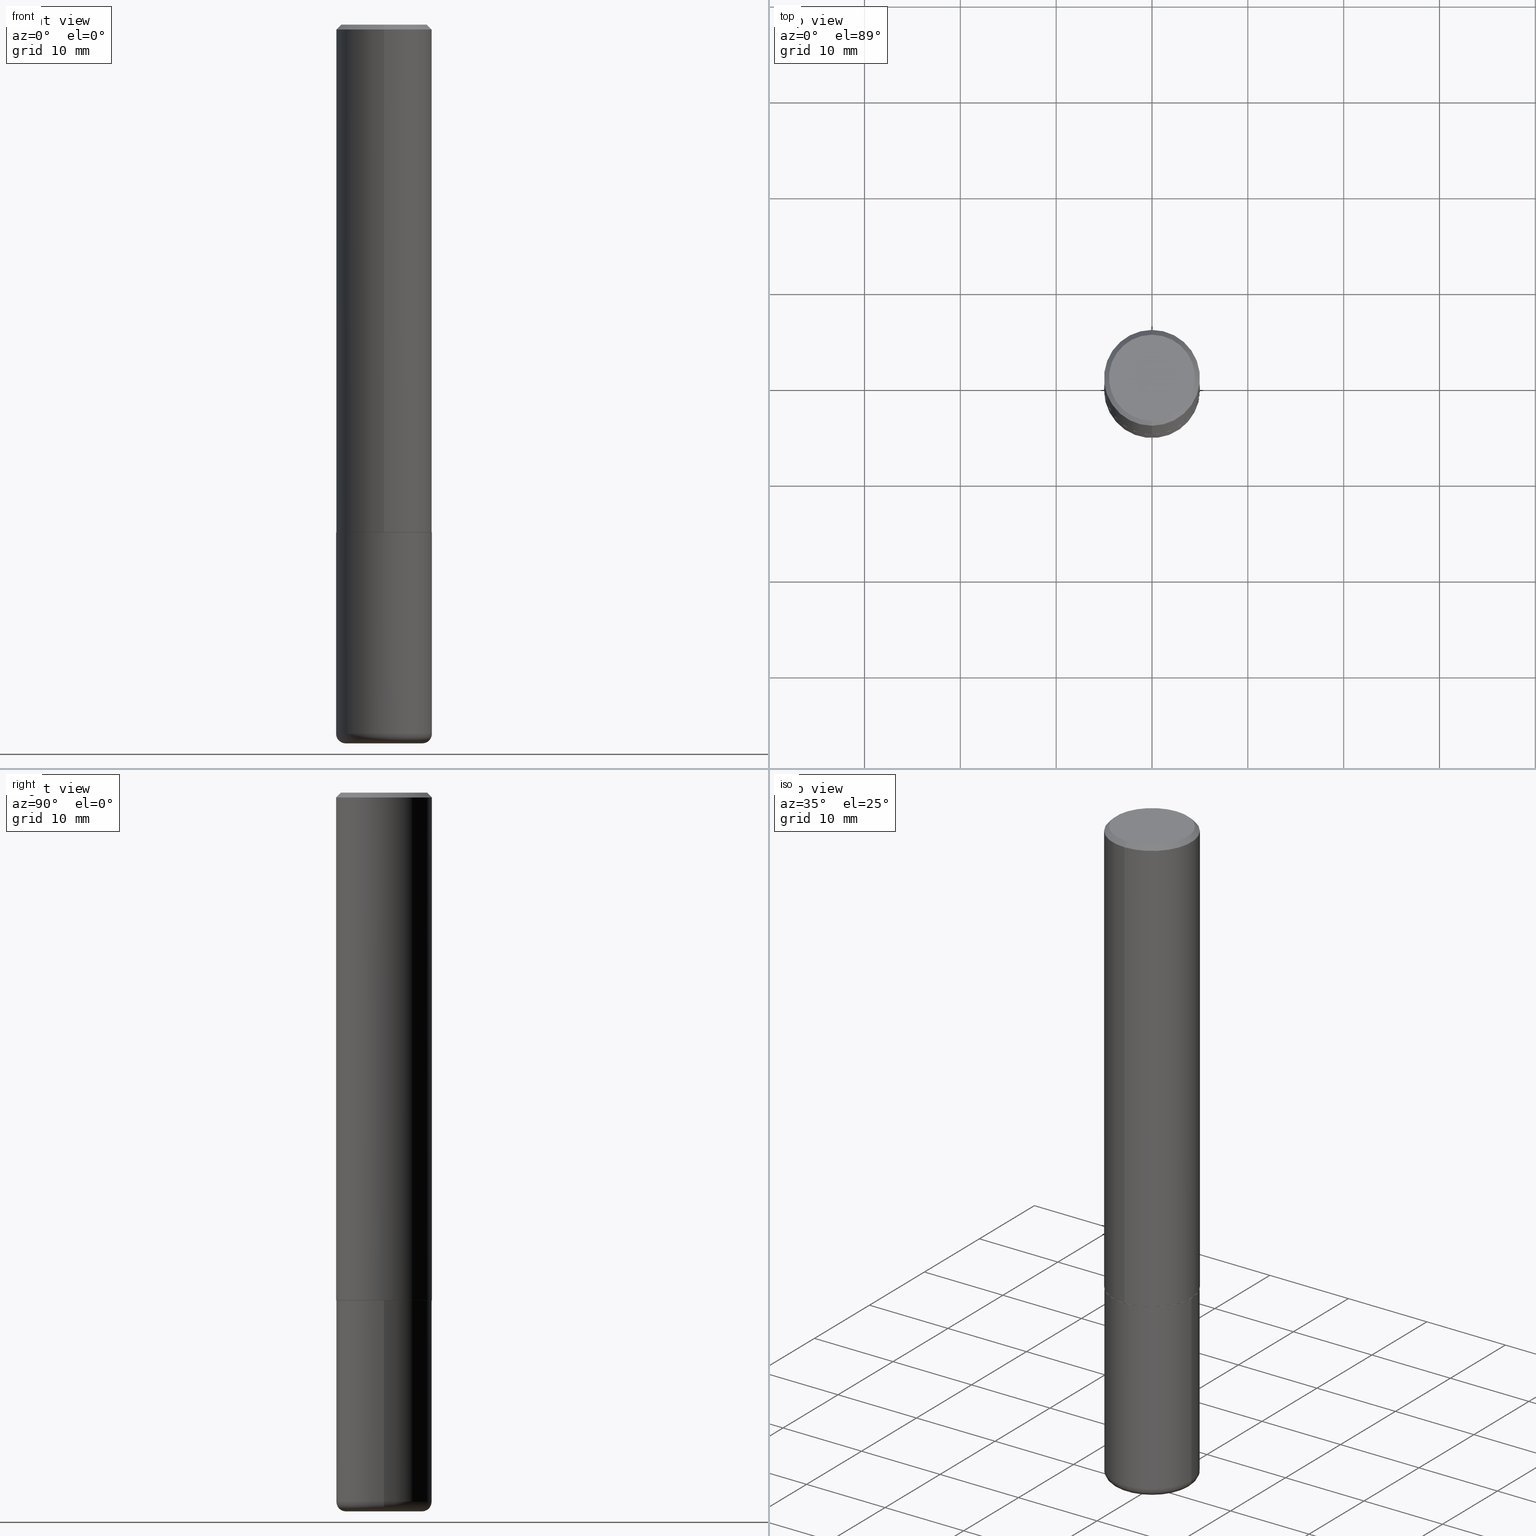
[diagram: canonical four-view strip — front | top / right | iso, engineering-drawing reading convention]
A machine part, canonical four-view strip (front | top / right | iso — engineering-drawing reading convention). The complete STEP part file that produces these views, byte-faithful:
ISO-10303-21;
HEADER;
FILE_DESCRIPTION (( 'STEP AP203' ),
    '1' );
FILE_NAME ('40023.STEP',
    '2024-03-03T21:01:40',
    ( '' ),
    ( '' ),
    'SwSTEP 2.0',
    'SolidWorks 2023',
    '' );
FILE_SCHEMA (( 'CONFIG_CONTROL_DESIGN' ));
ENDSEC;

DATA;
#1 = ORIENTED_EDGE ( 'NONE', *, *, #225, .F. ) ;
#2 = APPROVAL_STATUS ( 'not_yet_approved' ) ;
#3 = ADVANCED_BREP_SHAPE_REPRESENTATION ( '40023', ( #28, #30, #126 ), #333 ) ;
#4 = APPROVAL_ROLE ( '' ) ;
#5 = PERSON_AND_ORGANIZATION ( #82, #44 ) ;
#6 = AXIS2_PLACEMENT_3D ( 'NONE', #160, #154, #289 ) ;
#7 = ADVANCED_FACE ( 'NONE', ( #176 ), #10, .F. ) ;
#8 = LINE ( 'NONE', #175, #362 ) ;
#9 = PRODUCT_DEFINITION_SHAPE ( 'NONE', 'NONE',  #213 ) ;
#10 = PLANE ( 'NONE',  #97 ) ;
#11 = CLOSED_SHELL ( 'NONE', ( #305, #256, #67, #294, #259, #245, #147, #7 ) ) ;
#12 = AXIS2_PLACEMENT_3D ( 'NONE', #104, #71, #208 ) ;
#13 = LINE ( 'NONE', #302, #199 ) ;
#14 = DIRECTION ( 'NONE',  ( -2.445468806185136597E-29, 3.491481338843145583E-15, 1.000000000000000000 ) ) ;
#15 = DIRECTION ( 'NONE',  ( -2.445468806185136877E-29, 3.491481338843145188E-15, 1.000000000000000000 ) ) ;
#16 = DIRECTION ( 'NONE',  ( -2.444582098244614651E-29, 3.492751155082254917E-15, 1.000000000000000000 ) ) ;
#17 = AXIS2_PLACEMENT_3D ( 'NONE', #363, #266, #139 ) ;
#18 = EDGE_LOOP ( 'NONE', ( #306, #372 ) ) ;
#19 = ORIENTED_EDGE ( 'NONE', *, *, #417, .F. ) ;
#20 = DIRECTION ( 'NONE',  ( 1.000000000000000000, -6.982962677686267499E-15, 0.000000000000000000 ) ) ;
#21 = DIRECTION ( 'NONE',  ( -6.982962677686265922E-15, -1.000000000000000000, 4.163344669033670112E-15 ) ) ;
#22 = EDGE_LOOP ( 'NONE', ( #127, #148, #276, #163 ) ) ;
#23 = LENGTH_MEASURE_WITH_UNIT ( LENGTH_MEASURE( 0.02539999999999999897 ), #119 );
#24 = CARTESIAN_POINT ( 'NONE',  ( 1.374596203102541608E-15, 0.1968499999999999139, -0.02000000000000072900 ) ) ;
#25 = CC_DESIGN_PERSON_AND_ORGANIZATION_ASSIGNMENT ( #234, #62, ( #275 ) ) ;
#26 = VERTEX_POINT ( 'NONE', #268 ) ;
#27 = AXIS2_PLACEMENT_3D ( 'NONE', #274, #111, #308 ) ;
#28 = MANIFOLD_SOLID_BREP ( 'Body-Move/Copy2[1]', #323 ) ;
#29 = DIRECTION ( 'NONE',  ( -2.445468806185136597E-29, 3.491481338843145583E-15, 1.000000000000000000 ) ) ;
#30 = MANIFOLD_SOLID_BREP ( 'Body-Move/Copy2[2]', #11 ) ;
#31 = PLANE ( 'NONE',  #6 ) ;
#32 = APPROVAL ( #2, 'UNSPECIFIED' ) ;
#33 = ORIENTED_EDGE ( 'NONE', *, *, #204, .F. ) ;
#34 = EDGE_CURVE ( 'NONE', #241, #253, #135, .T. ) ;
#35 = VECTOR ( 'NONE', #211, 39.37007874015748143 ) ;
#36 = ORIENTED_EDGE ( 'NONE', *, *, #331, .F. ) ;
#37 = ORIENTED_EDGE ( 'NONE', *, *, #210, .F. ) ;
#38 = EDGE_LOOP ( 'NONE', ( #87, #231, #33, #402 ) ) ;
#39 = DIRECTION ( 'NONE',  ( -2.445468806185136597E-29, 3.491481338843145583E-15, 1.000000000000000000 ) ) ;
#40 = FACE_OUTER_BOUND ( 'NONE', #290, .T. ) ;
#41 = DIRECTION ( 'NONE',  ( 6.982962677686265922E-15, 1.000000000000000000, -3.492751155082255311E-15 ) ) ;
#42 = PLANE ( 'NONE',  #142 ) ;
#43 = EDGE_LOOP ( 'NONE', ( #177, #228, #84, #182 ) ) ;
#44 = ORGANIZATION ( 'UNSPECIFIED', 'UNSPECIFIED', '' ) ;
#45 = DIRECTION ( 'NONE',  ( -4.851104656540957964E-15, -0.7071067811865491270, -0.7071067811865459074 ) ) ;
#46 = EDGE_CURVE ( 'NONE', #185, #98, #384, .T. ) ;
#47 = ORIENTED_EDGE ( 'NONE', *, *, #367, .T. ) ;
#48 = DIRECTION ( 'NONE',  ( -2.445468806185136597E-29, 3.491481338843145583E-15, 1.000000000000000000 ) ) ;
#49 = AXIS2_PLACEMENT_3D ( 'NONE', #186, #80, #184 ) ;
#50 = ORIENTED_EDGE ( 'NONE', *, *, #331, .T. ) ;
#51 = CARTESIAN_POINT ( 'NONE',  ( 7.124628819939776708E-29, -1.017208173258561931E-14, -2.913399999999999768 ) ) ;
#52 = ORIENTED_EDGE ( 'NONE', *, *, #34, .T. ) ;
#53 = CC_DESIGN_PERSON_AND_ORGANIZATION_ASSIGNMENT ( #353, #380, ( #275 ) ) ;
#54 = DIRECTION ( 'NONE',  ( -6.982962677686265922E-15, -1.000000000000000000, 3.491137977679280212E-15 ) ) ;
#55 = CIRCLE ( 'NONE', #263, 0.1968500000000000527 ) ;
#56 = VERTEX_POINT ( 'NONE', #271 ) ;
#57 = APPLICATION_PROTOCOL_DEFINITION ( 'international standard', 'config_control_design', 1994, #371 ) ;
#58 = DIRECTION ( 'NONE',  ( -6.982962677686265922E-15, -1.000000000000000000, 3.492751155082254917E-15 ) ) ;
#59 = CARTESIAN_POINT ( 'NONE',  ( -0.1968500000000000805, -8.773378357241862315E-15, -2.913399999999999768 ) ) ;
#60 = CC_DESIGN_APPROVAL ( #283, ( #213 ) ) ;
#61 = AXIS2_PLACEMENT_3D ( 'NONE', #187, #313, #83 ) ;
#62 = PERSON_AND_ORGANIZATION_ROLE ( 'design_supplier' ) ;
#63 = CIRCLE ( 'NONE', #17, 0.1968500000000000250 ) ;
#64 = EDGE_CURVE ( 'NONE', #219, #272, #383, .T. ) ;
#65 = CARTESIAN_POINT ( 'NONE',  ( 1.374596203102541608E-15, 0.1968499999999999139, -0.02000000000000072900 ) ) ;
#66 = FACE_OUTER_BOUND ( 'NONE', #343, .T. ) ;
#67 = ADVANCED_FACE ( 'NONE', ( #236 ), #235, .T. ) ;
#68 = DIRECTION ( 'NONE',  ( 6.982962677686265922E-15, 1.000000000000000000, -3.491137977679280212E-15 ) ) ;
#69 = DIRECTION ( 'NONE',  ( 1.000000000000000000, -6.982962677686264344E-15, 4.883557194083112340E-29 ) ) ;
#70 = DIRECTION ( 'NONE',  ( -6.982962677686265922E-15, -1.000000000000000000, 4.184602492209747448E-15 ) ) ;
#71 = DIRECTION ( 'NONE',  ( -2.444582098244614091E-29, 3.492751155082255311E-15, 1.000000000000000000 ) ) ;
#72 = AXIS2_PLACEMENT_3D ( 'NONE', #332, #39, #69 ) ;
#73 = CARTESIAN_POINT ( 'NONE',  ( 5.101109464407037044E-29, -7.288323835310140044E-15, -2.086699999999999999 ) ) ;
#74 = CARTESIAN_POINT ( 'NONE',  ( 0.000000000000000000, 0.000000000000000000, 0.000000000000000000 ) ) ;
#75 = EDGE_LOOP ( 'NONE', ( #339, #406, #114, #226 ) ) ;
#76 = CARTESIAN_POINT ( 'NONE',  ( 9.336359050222891666E-46, -1.333953107172988205E-31, -3.819204540901722359E-17 ) ) ;
#77 = CARTESIAN_POINT ( 'NONE',  ( 1.234936949548816195E-15, 0.1768500000000000072, -6.367890644808053875E-16 ) ) ;
#78 = EDGE_CURVE ( 'NONE', #121, #314, #416, .T. ) ;
#79 = PERSON_AND_ORGANIZATION_ROLE ( 'design_owner' ) ;
#80 = DIRECTION ( 'NONE',  ( -2.445468806185136597E-29, 3.491481338843145583E-15, 1.000000000000000000 ) ) ;
#81 = CIRCLE ( 'NONE', #355, 0.1958499999999999963 ) ;
#82 = PERSON ( 'UNSPECIFIED', 'UNSPECIFIED', 'UNSPECIFIED', ('UNSPECIFIED'), ('UNSPECIFIED'), ('UNSPECIFIED') ) ;
#83 = DIRECTION ( 'NONE',  ( 1.000000000000000000, -6.982962677686265922E-15, 0.000000000000000000 ) ) ;
#84 = ORIENTED_EDGE ( 'NONE', *, *, #78, .F. ) ;
#85 = CARTESIAN_POINT ( 'NONE',  ( 5.102959757866523939E-29, -7.285674109763990928E-15, -2.086699999999999999 ) ) ;
#86 = CARTESIAN_POINT ( 'NONE',  ( 0.000000000000000000, 0.000000000000000000, 0.000000000000000000 ) ) ;
#87 = ORIENTED_EDGE ( 'NONE', *, *, #407, .T. ) ;
#88 = DIRECTION ( 'NONE',  ( -6.982962677686265922E-15, -1.000000000000000000, 4.184602492209747448E-15 ) ) ;
#89 = CARTESIAN_POINT ( 'NONE',  ( -0.1968500000000000250, -7.330174545831047333E-15, -2.086699999999999999 ) ) ;
#90 = ORIENTED_EDGE ( 'NONE', *, *, #193, .F. ) ;
#91 = LOCAL_TIME ( 16, 1, 40.00000000000000000, #322 ) ;
#92 = ORIENTED_EDGE ( 'NONE', *, *, #395, .T. ) ;
#93 = CYLINDRICAL_SURFACE ( 'NONE', #369, 0.1968500000000001082 ) ;
#94 = VERTEX_POINT ( 'NONE', #388 ) ;
#95 = EDGE_CURVE ( 'NONE', #379, #314, #365, .T. ) ;
#96 = DATE_AND_TIME ( #262, #91 ) ;
#97 = AXIS2_PLACEMENT_3D ( 'NONE', #77, #303, #41 ) ;
#98 = VERTEX_POINT ( 'NONE', #390 ) ;
#99 = CC_DESIGN_SECURITY_CLASSIFICATION ( #167, ( #275 ) ) ;
#100 = AXIS2_PLACEMENT_3D ( 'NONE', #140, #143, #102 ) ;
#101 = CC_DESIGN_PERSON_AND_ORGANIZATION_ASSIGNMENT ( #352, #159, ( #167 ) ) ;
#102 = DIRECTION ( 'NONE',  ( -6.982962677686265922E-15, -1.000000000000000000, 3.491137977679280212E-15 ) ) ;
#103 = FACE_OUTER_BOUND ( 'NONE', #38, .T. ) ;
#104 = CARTESIAN_POINT ( 'NONE',  ( 5.101109464407037044E-29, -7.288323835310140044E-15, -2.086699999999999999 ) ) ;
#105 = ADVANCED_FACE ( 'NONE', ( #212 ), #337, .T. ) ;
#106 = DIRECTION ( 'NONE',  ( -6.982962677686265922E-15, -1.000000000000000000, 3.492751155082254522E-15 ) ) ;
#107 = PRODUCT ( '40023', '40023', '', ( #374 ) ) ;
#108 = AXIS2_PLACEMENT_3D ( 'NONE', #341, #248, #118 ) ;
#109 = ORIENTED_EDGE ( 'NONE', *, *, #417, .T. ) ;
#110 = DIRECTION ( 'NONE',  ( -2.444582098244614651E-29, 3.492751155082254917E-15, 1.000000000000000000 ) ) ;
#111 = DIRECTION ( 'NONE',  ( -2.444582098244614651E-29, 3.492751155082254917E-15, 1.000000000000000000 ) ) ;
#112 = ORIENTED_EDGE ( 'NONE', *, *, #194, .T. ) ;
#113 = DIRECTION ( 'NONE',  ( 1.000000000000000000, -6.982962677686266711E-15, 0.000000000000000000 ) ) ;
#114 = ORIENTED_EDGE ( 'NONE', *, *, #265, .T. ) ;
#115 = CC_DESIGN_DATE_AND_TIME_ASSIGNMENT ( #96, #349, ( #167 ) ) ;
#116 = EDGE_CURVE ( 'NONE', #241, #155, #282, .T. ) ;
#117 = AXIS2_PLACEMENT_3D ( 'NONE', #74, #48, #179 ) ;
#118 = DIRECTION ( 'NONE',  ( -6.982962677686265922E-15, -1.000000000000000000, 4.163344669033670112E-15 ) ) ;
#119 =( LENGTH_UNIT ( ) NAMED_UNIT ( * ) SI_UNIT ( $, .METRE. ) );
#120 = FACE_OUTER_BOUND ( 'NONE', #18, .T. ) ;
#121 = VERTEX_POINT ( 'NONE', #357 ) ;
#122 = CALENDAR_DATE ( 2024, 3, 3 ) ;
#123 = CARTESIAN_POINT ( 'NONE',  ( 4.889164196489240128E-31, -6.985502310164524180E-17, -0.02000000000000004205 ) ) ;
#124 = ORIENTED_EDGE ( 'NONE', *, *, #78, .T. ) ;
#125 = CIRCLE ( 'NONE', #61, 0.1574500000000000066 ) ;
#126 = AXIS2_PLACEMENT_3D ( 'NONE', #183, #149, #156 ) ;
#127 = ORIENTED_EDGE ( 'NONE', *, *, #329, .F. ) ;
#128 = EDGE_LOOP ( 'NONE', ( #398, #112, #312, #1 ) ) ;
#129 = DATE_AND_TIME ( #319, #414 ) ;
#130 = ADVANCED_FACE ( 'NONE', ( #66 ), #338, .T. ) ;
#131 = COORDINATED_UNIVERSAL_TIME_OFFSET ( 5, 0, .BEHIND. ) ;
#132 = CIRCLE ( 'NONE', #377, 0.1768500000000000072 ) ;
#133 = EDGE_CURVE ( 'NONE', #219, #379, #203, .T. ) ;
#134 = PRODUCT_RELATED_PRODUCT_CATEGORY ( 'detail', '', ( #107 ) ) ;
#135 = LINE ( 'NONE', #335, #205 ) ;
#136 = DIRECTION ( 'NONE',  ( -4.937700262164969294E-15, -0.7071067811866054154, 0.7071067811864896191 ) ) ;
#137 = LOCAL_TIME ( 16, 1, 40.00000000000000000, #216 ) ;
#138 = LOCAL_TIME ( 16, 1, 40.00000000000000000, #287 ) ;
#139 = DIRECTION ( 'NONE',  ( 1.000000000000000000, -6.982962677686267499E-15, 0.000000000000000000 ) ) ;
#140 = CARTESIAN_POINT ( 'NONE',  ( 4.889164196489240128E-31, -6.985502310164524180E-17, -0.02000000000000004205 ) ) ;
#141 = DIRECTION ( 'NONE',  ( -2.444582098244614651E-29, 3.492751155082255311E-15, 1.000000000000000000 ) ) ;
#142 = AXIS2_PLACEMENT_3D ( 'NONE', #359, #171, #356 ) ;
#143 = DIRECTION ( 'NONE',  ( -2.444582098244614651E-29, 3.492751155082254917E-15, 1.000000000000000000 ) ) ;
#144 = ORIENTED_EDGE ( 'NONE', *, *, #407, .F. ) ;
#145 = CALENDAR_DATE ( 2024, 3, 3 ) ;
#146 = DIRECTION ( 'NONE',  ( 1.000000000000000000, -6.982962677686266711E-15, 0.000000000000000000 ) ) ;
#147 = ADVANCED_FACE ( 'NONE', ( #201 ), #360, .F. ) ;
#148 = ORIENTED_EDGE ( 'NONE', *, *, #395, .F. ) ;
#149 = DIRECTION ( 'NONE',  ( 0.000000000000000000, 0.000000000000000000, 1.000000000000000000 ) ) ;
#150 = FACE_OUTER_BOUND ( 'NONE', #342, .T. ) ;
#151 = AXIS2_PLACEMENT_3D ( 'NONE', #397, #238, #264 ) ;
#152 = AXIS2_PLACEMENT_3D ( 'NONE', #218, #311, #21 ) ;
#153 = PERSON_AND_ORGANIZATION ( #82, #44 ) ;
#154 = DIRECTION ( 'NONE',  ( 2.438088387897960049E-29, -3.491481338843145188E-15, -1.000000000000000000 ) ) ;
#155 = VERTEX_POINT ( 'NONE', #412 ) ;
#156 = DIRECTION ( 'NONE',  ( 1.000000000000000000, 0.000000000000000000, 0.000000000000000000 ) ) ;
#157 = ORIENTED_EDGE ( 'NONE', *, *, #46, .T. ) ;
#158 = ADVANCED_FACE ( 'NONE', ( #317 ), #261, .T. ) ;
#159 = PERSON_AND_ORGANIZATION_ROLE ( 'classification_officer' ) ;
#160 = CARTESIAN_POINT ( 'NONE',  ( 7.220980290903470182E-29, -1.030964609733603853E-14, -2.952799999999999869 ) ) ;
#161 = EDGE_LOOP ( 'NONE', ( #408, #52, #19, #279 ) ) ;
#162 = AXIS2_PLACEMENT_3D ( 'NONE', #86, #345, #58 ) ;
#163 = ORIENTED_EDGE ( 'NONE', *, *, #225, .T. ) ;
#164 = ADVANCED_FACE ( 'NONE', ( #120 ), #31, .T. ) ;
#165 = APPROVAL_ROLE ( '' ) ;
#166 = CC_DESIGN_APPROVAL ( #32, ( #275 ) ) ;
#167 = SECURITY_CLASSIFICATION ( '', '', #327 ) ;
#168 = CONICAL_SURFACE ( 'NONE', #394, 0.1958499999999999963, 0.7853981633975336552 ) ;
#169 = APPROVAL_PERSON_ORGANIZATION ( #198, #391, #4 ) ;
#170 = ADVANCED_FACE ( 'NONE', ( #288 ), #244, .T. ) ;
#171 = DIRECTION ( 'NONE',  ( 2.438088387897960049E-29, -3.491481338843145188E-15, -1.000000000000000000 ) ) ;
#172 = AXIS2_PLACEMENT_3D ( 'NONE', #299, #269, #296 ) ;
#173 = CARTESIAN_POINT ( 'NONE',  ( 1.391597947986207069E-15, 0.1958499999999927244, -2.086700000000000887 ) ) ;
#174 = DIRECTION ( 'NONE',  ( -2.444582098244614651E-29, 3.492751155082254917E-15, 1.000000000000000000 ) ) ;
#175 = CARTESIAN_POINT ( 'NONE',  ( -1.374596203102542200E-15, -0.1968500000000001082, 6.875480648779422671E-16 ) ) ;
#176 = FACE_OUTER_BOUND ( 'NONE', #410, .T. ) ;
#177 = ORIENTED_EDGE ( 'NONE', *, *, #204, .T. ) ;
#178 = DIRECTION ( 'NONE',  ( -6.982962677686265922E-15, -1.000000000000000000, 3.492751155082254522E-15 ) ) ;
#179 = DIRECTION ( 'NONE',  ( 1.000000000000000000, -6.982962677686266711E-15, 4.876176775795935793E-29 ) ) ;
#180 = CIRCLE ( 'NONE', #108, 0.1968500000000002470 ) ;
#181 = CC_DESIGN_DATE_AND_TIME_ASSIGNMENT ( #255, #325, ( #213 ) ) ;
#182 = ORIENTED_EDGE ( 'NONE', *, *, #366, .F. ) ;
#183 = CARTESIAN_POINT ( 'NONE',  ( 0.000000000000000000, 0.000000000000000000, 0.000000000000000000 ) ) ;
#184 = DIRECTION ( 'NONE',  ( 1.000000000000000000, -6.982962677686266711E-15, 4.876176775795935793E-29 ) ) ;
#185 = VERTEX_POINT ( 'NONE', #378 ) ;
#186 = CARTESIAN_POINT ( 'NONE',  ( 0.000000000000000000, 0.000000000000000000, 0.000000000000000000 ) ) ;
#187 = CARTESIAN_POINT ( 'NONE',  ( 7.220980290903470182E-29, -1.030964609733603853E-14, -2.952799999999999869 ) ) ;
#188 = AXIS2_PLACEMENT_3D ( 'NONE', #85, #214, #20 ) ;
#189 = EDGE_LOOP ( 'NONE', ( #157, #251, #37, #36 ) ) ;
#190 = APPROVAL_DATE_TIME ( #292, #32 ) ;
#191 = DIRECTION ( 'NONE',  ( 1.000000000000000000, -6.982962677686264344E-15, 4.883557194083112340E-29 ) ) ;
#192 = AXIS2_PLACEMENT_3D ( 'NONE', #399, #14, #113 ) ;
#193 = EDGE_CURVE ( 'NONE', #98, #241, #239, .T. ) ;
#194 = EDGE_CURVE ( 'NONE', #379, #94, #180, .T. ) ;
#195 = APPLICATION_CONTEXT ( 'configuration controlled 3d designs of mechanical parts and assemblies' ) ;
#196 = APPROVAL_PERSON_ORGANIZATION ( #5, #32, #165 ) ;
#197 = ORIENTED_EDGE ( 'NONE', *, *, #194, .F. ) ;
#198 = PERSON_AND_ORGANIZATION ( #82, #44 ) ;
#199 = VECTOR ( 'NONE', #136, 39.37007874015748143 ) ;
#200 = CARTESIAN_POINT ( 'NONE',  ( -1.350489030861325232E-15, -0.1968500000000000527, -0.01999999999999935510 ) ) ;
#201 = FACE_OUTER_BOUND ( 'NONE', #222, .T. ) ;
#202 = DIRECTION ( 'NONE',  ( -6.982962677686265922E-15, -1.000000000000000000, 3.492751155082254917E-15 ) ) ;
#203 = LINE ( 'NONE', #173, #307 ) ;
#204 = EDGE_CURVE ( 'NONE', #94, #379, #249, .T. ) ;
#205 = VECTOR ( 'NONE', #15, 39.37007874015748143 ) ;
#206 = LINE ( 'NONE', #200, #324 ) ;
#207 = AXIS2_PLACEMENT_3D ( 'NONE', #123, #278, #54 ) ;
#208 = DIRECTION ( 'NONE',  ( -6.982962677686265922E-15, -1.000000000000000000, 3.492751155082255311E-15 ) ) ;
#209 = DIRECTION ( 'NONE',  ( -2.444582098244614651E-29, 3.492751155082254917E-15, 1.000000000000000000 ) ) ;
#210 = EDGE_CURVE ( 'NONE', #155, #241, #55, .T. ) ;
#211 = DIRECTION ( 'NONE',  ( -2.445468806185136877E-29, 3.491481338843145188E-15, 1.000000000000000000 ) ) ;
#212 = FACE_OUTER_BOUND ( 'NONE', #161, .T. ) ;
#213 = PRODUCT_DEFINITION ( 'UNKNOWN', '', #275, #229 ) ;
#214 = DIRECTION ( 'NONE',  ( -2.445468806185136597E-29, 3.491481338843145583E-15, 1.000000000000000000 ) ) ;
#215 = VECTOR ( 'NONE', #286, 39.37007874015748143 ) ;
#216 = COORDINATED_UNIVERSAL_TIME_OFFSET ( 5, 0, .BEHIND. ) ;
#217 = DIRECTION ( 'NONE',  ( 7.105427357601001859E-15, 1.000000000000000000, -3.491481338843145583E-15 ) ) ;
#218 = CARTESIAN_POINT ( 'NONE',  ( 5.098664882308792093E-29, -7.284831084155059258E-15, -2.085699999999999665 ) ) ;
#219 = VERTEX_POINT ( 'NONE', #252 ) ;
#220 = CYLINDRICAL_SURFACE ( 'NONE', #162, 0.1968500000000001082 ) ;
#221 = VECTOR ( 'NONE', #141, 39.37007874015748143 ) ;
#222 = EDGE_LOOP ( 'NONE', ( #144, #246 ) ) ;
#223 =( NAMED_UNIT ( * ) SI_UNIT ( $, .STERADIAN. ) SOLID_ANGLE_UNIT ( ) );
#224 = CARTESIAN_POINT ( 'NONE',  ( 0.000000000000000000, 0.000000000000000000, 0.000000000000000000 ) ) ;
#225 = EDGE_CURVE ( 'NONE', #314, #121, #344, .T. ) ;
#226 = ORIENTED_EDGE ( 'NONE', *, *, #367, .F. ) ;
#227 = CALENDAR_DATE ( 2024, 3, 3 ) ;
#228 = ORIENTED_EDGE ( 'NONE', *, *, #95, .T. ) ;
#229 = DESIGN_CONTEXT ( 'detailed design', #371, 'design' ) ;
#230 = EDGE_CURVE ( 'NONE', #98, #185, #125, .T. ) ;
#231 = ORIENTED_EDGE ( 'NONE', *, *, #133, .T. ) ;
#232 = AXIS2_PLACEMENT_3D ( 'NONE', #364, #209, #70 ) ;
#233 = EDGE_CURVE ( 'NONE', #56, #314, #401, .T. ) ;
#234 = PERSON_AND_ORGANIZATION ( #82, #44 ) ;
#235 = CONICAL_SURFACE ( 'NONE', #361, 0.1968499999999999694, 0.7853981633974471688 ) ;
#236 = FACE_OUTER_BOUND ( 'NONE', #326, .T. ) ;
#237 = CARTESIAN_POINT ( 'NONE',  ( 4.889164196489240128E-31, -6.985502310164524180E-17, -0.02000000000000004205 ) ) ;
#238 = DIRECTION ( 'NONE',  ( -2.445468806185136597E-29, 3.491481338843145583E-15, 1.000000000000000000 ) ) ;
#239 = CIRCLE ( 'NONE', #270, 0.03940000000000009467 ) ;
#240 = CARTESIAN_POINT ( 'NONE',  ( 4.889164196489240128E-31, -6.985502310164524180E-17, -0.02000000000000004205 ) ) ;
#241 = VERTEX_POINT ( 'NONE', #59 ) ;
#242 = DIRECTION ( 'NONE',  ( 2.444582098244614651E-29, -3.492751155082254917E-15, -1.000000000000000000 ) ) ;
#243 = APPLICATION_PROTOCOL_DEFINITION ( 'international standard', 'config_control_design', 1994, #195 ) ;
#244 = CYLINDRICAL_SURFACE ( 'NONE', #49, 0.1968500000000000527 ) ;
#245 = ADVANCED_FACE ( 'NONE', ( #150 ), #168, .T. ) ;
#246 = ORIENTED_EDGE ( 'NONE', *, *, #64, .F. ) ;
#247 = DATE_AND_TIME ( #145, #138 ) ;
#248 = DIRECTION ( 'NONE',  ( -2.444582098244614651E-29, 3.492751155082254917E-15, 1.000000000000000000 ) ) ;
#249 = CIRCLE ( 'NONE', #152, 0.1968500000000002470 ) ;
#250 = DIRECTION ( 'NONE',  ( -6.982962677686265922E-15, -1.000000000000000000, 4.184602492209747448E-15 ) ) ;
#251 = ORIENTED_EDGE ( 'NONE', *, *, #193, .T. ) ;
#252 = CARTESIAN_POINT ( 'NONE',  ( 1.395150661665008165E-15, 0.1958499999999927244, -2.086700000000000887 ) ) ;
#253 = VERTEX_POINT ( 'NONE', #89 ) ;
#254 = ORIENTED_EDGE ( 'NONE', *, *, #329, .T. ) ;
#255 = DATE_AND_TIME ( #122, #137 ) ;
#256 = ADVANCED_FACE ( 'NONE', ( #373 ), #220, .T. ) ;
#257 = FACE_OUTER_BOUND ( 'NONE', #128, .T. ) ;
#258 = CIRCLE ( 'NONE', #386, 0.1768500000000000072 ) ;
#259 = ADVANCED_FACE ( 'NONE', ( #257 ), #93, .T. ) ;
#260 = SHAPE_DEFINITION_REPRESENTATION ( #9, #3 ) ;
#261 = TOROIDAL_SURFACE ( 'NONE', #350, 0.1574500000000000066, 0.03940000000000008079 ) ;
#262 = CALENDAR_DATE ( 2024, 3, 3 ) ;
#263 = AXIS2_PLACEMENT_3D ( 'NONE', #51, #409, #146 ) ;
#264 = DIRECTION ( 'NONE',  ( 1.000000000000000000, -6.982962677686265922E-15, 0.000000000000000000 ) ) ;
#265 = EDGE_CURVE ( 'NONE', #155, #26, #389, .T. ) ;
#266 = DIRECTION ( 'NONE',  ( -2.445468806185136597E-29, 3.491481338843145583E-15, 1.000000000000000000 ) ) ;
#267 = CARTESIAN_POINT ( 'NONE',  ( 1.398703375343784214E-15, 0.1968499999999930028, -2.085700000000000554 ) ) ;
#268 = CARTESIAN_POINT ( 'NONE',  ( 0.1968500000000000250, -8.660270312866532536E-15, -2.086699999999999999 ) ) ;
#269 = DIRECTION ( 'NONE',  ( -6.982962677686266711E-15, -1.000000000000000000, 3.491481338843145583E-15 ) ) ;
#270 = AXIS2_PLACEMENT_3D ( 'NONE', #281, #217, #370 ) ;
#271 = CARTESIAN_POINT ( 'NONE',  ( 1.304766576325679099E-15, 0.1768500000000000072, -6.558850871853140085E-16 ) ) ;
#272 = VERTEX_POINT ( 'NONE', #358 ) ;
#273 =( NAMED_UNIT ( * ) PLANE_ANGLE_UNIT ( ) SI_UNIT ( $, .RADIAN. ) );
#274 = CARTESIAN_POINT ( 'NONE',  ( 5.101109464407037044E-29, -7.288323835310140044E-15, -2.086699999999999999 ) ) ;
#275 = PRODUCT_DEFINITION_FORMATION_WITH_SPECIFIED_SOURCE ( 'ANY', '', #107, .NOT_KNOWN. ) ;
#276 = ORIENTED_EDGE ( 'NONE', *, *, #233, .T. ) ;
#277 = PERSON_AND_ORGANIZATION_ROLE ( 'creator' ) ;
#278 = DIRECTION ( 'NONE',  ( -2.444582098244614651E-29, 3.492751155082254917E-15, 1.000000000000000000 ) ) ;
#279 = ORIENTED_EDGE ( 'NONE', *, *, #265, .F. ) ;
#280 = CC_DESIGN_APPROVAL ( #391, ( #167 ) ) ;
#281 = CARTESIAN_POINT ( 'NONE',  ( -0.1574500000000000066, -9.053332195131342510E-15, -2.913399999999999768 ) ) ;
#282 = CIRCLE ( 'NONE', #192, 0.1968500000000000527 ) ;
#283 = APPROVAL ( #310, 'UNSPECIFIED' ) ;
#284 = ORIENTED_EDGE ( 'NONE', *, *, #233, .F. ) ;
#285 = PERSON_AND_ORGANIZATION ( #82, #44 ) ;
#286 = DIRECTION ( 'NONE',  ( 4.937700262164541731E-15, 0.7071067811865442421, -0.7071067811865507924 ) ) ;
#287 = COORDINATED_UNIVERSAL_TIME_OFFSET ( 5, 0, .BEHIND. ) ;
#288 = FACE_OUTER_BOUND ( 'NONE', #75, .T. ) ;
#289 = DIRECTION ( 'NONE',  ( -1.000000000000000000, 6.982962677686265922E-15, -4.876176775795935793E-29 ) ) ;
#290 = EDGE_LOOP ( 'NONE', ( #109, #47 ) ) ;
#291 = CIRCLE ( 'NONE', #172, 0.03940000000000009467 ) ;
#292 = DATE_AND_TIME ( #227, #413 ) ;
#293 = VERTEX_POINT ( 'NONE', #385 ) ;
#294 = ADVANCED_FACE ( 'NONE', ( #334 ), #330, .T. ) ;
#295 = CC_DESIGN_PERSON_AND_ORGANIZATION_ASSIGNMENT ( #411, #277, ( #213 ) ) ;
#296 = DIRECTION ( 'NONE',  ( 1.000000000000000000, -6.982962677686261189E-15, 0.000000000000000000 ) ) ;
#297 = DIRECTION ( 'NONE',  ( 6.982962677686265922E-15, 1.000000000000000000, -3.491137977679280212E-15 ) ) ;
#298 = UNCERTAINTY_MEASURE_WITH_UNIT (LENGTH_MEASURE( 1.000000000000000082E-05 ), #315, 'distance_accuracy_value', 'NONE');
#299 = CARTESIAN_POINT ( 'NONE',  ( 0.1574500000000000066, -1.127154920618732249E-14, -2.913399999999999768 ) ) ;
#300 = DIRECTION ( 'NONE',  ( 5.024295867788490741E-15, 0.7071067811866103003, 0.7071067811864847341 ) ) ;
#301 = ADVANCED_FACE ( 'NONE', ( #40 ), #42, .F. ) ;
#302 = CARTESIAN_POINT ( 'NONE',  ( -1.367613240424804121E-15, -0.1958500000000072960, -2.086699999999999111 ) ) ;
#303 = DIRECTION ( 'NONE',  ( 2.444582098244614091E-29, -3.492751155082255311E-15, -1.000000000000000000 ) ) ;
#304 = DIRECTION ( 'NONE',  ( -2.444582098244614651E-29, 3.492751155082255311E-15, 1.000000000000000000 ) ) ;
#305 = ADVANCED_FACE ( 'NONE', ( #103 ), #316, .T. ) ;
#306 = ORIENTED_EDGE ( 'NONE', *, *, #46, .F. ) ;
#307 = VECTOR ( 'NONE', #300, 39.37007874015748143 ) ;
#308 = DIRECTION ( 'NONE',  ( -6.982962677686265922E-15, -1.000000000000000000, 4.184602492209747448E-15 ) ) ;
#309 = ORIENTED_EDGE ( 'NONE', *, *, #351, .T. ) ;
#310 = APPROVAL_STATUS ( 'not_yet_approved' ) ;
#311 = DIRECTION ( 'NONE',  ( -2.444582098244614651E-29, 3.492751155082254917E-15, 1.000000000000000000 ) ) ;
#312 = ORIENTED_EDGE ( 'NONE', *, *, #366, .T. ) ;
#313 = DIRECTION ( 'NONE',  ( -2.445468806185136597E-29, 3.491481338843145583E-15, 1.000000000000000000 ) ) ;
#314 = VERTEX_POINT ( 'NONE', #65 ) ;
#315 =( CONVERSION_BASED_UNIT ( 'INCH', #23 ) LENGTH_UNIT ( ) NAMED_UNIT ( #382 ) );
#316 = CONICAL_SURFACE ( 'NONE', #232, 0.1958499999999999963, 0.7853981633975336552 ) ;
#317 = FACE_OUTER_BOUND ( 'NONE', #189, .T. ) ;
#318 = APPROVAL_ROLE ( '' ) ;
#319 = CALENDAR_DATE ( 2024, 3, 3 ) ;
#320 = CARTESIAN_POINT ( 'NONE',  ( 7.124628819939776708E-29, -1.017208173258561931E-14, -2.913399999999999768 ) ) ;
#321 = ORIENTED_EDGE ( 'NONE', *, *, #230, .T. ) ;
#322 = COORDINATED_UNIVERSAL_TIME_OFFSET ( 5, 0, .BEHIND. ) ;
#323 = CLOSED_SHELL ( 'NONE', ( #105, #158, #301, #170, #130, #164 ) ) ;
#324 = VECTOR ( 'NONE', #45, 39.37007874015748143 ) ;
#325 = DATE_TIME_ROLE ( 'creation_date' ) ;
#326 = EDGE_LOOP ( 'NONE', ( #403, #254, #124, #284 ) ) ;
#327 = SECURITY_CLASSIFICATION_LEVEL ( 'unclassified' ) ;
#328 = COORDINATED_UNIVERSAL_TIME_OFFSET ( 5, 0, .BEHIND. ) ;
#329 = EDGE_CURVE ( 'NONE', #293, #121, #206, .T. ) ;
#330 = CONICAL_SURFACE ( 'NONE', #404, 0.1968499999999999694, 0.7853981633974471688 ) ;
#331 = EDGE_CURVE ( 'NONE', #185, #155, #291, .T. ) ;
#332 = CARTESIAN_POINT ( 'NONE',  ( 7.124628819939776708E-29, -1.017208173258561931E-14, -2.913399999999999768 ) ) ;
#333 =( GEOMETRIC_REPRESENTATION_CONTEXT ( 3 ) GLOBAL_UNCERTAINTY_ASSIGNED_CONTEXT ( ( #298 ) ) GLOBAL_UNIT_ASSIGNED_CONTEXT ( ( #315, #273, #223 ) ) REPRESENTATION_CONTEXT ( 'NONE', 'WORKASPACE' ) );
#334 = FACE_OUTER_BOUND ( 'NONE', #22, .T. ) ;
#335 = CARTESIAN_POINT ( 'NONE',  ( -0.1968500000000000527, 1.398703375343757590E-15, -9.682923725166785079E-30 ) ) ;
#336 = ORIENTED_EDGE ( 'NONE', *, *, #116, .F. ) ;
#337 = CYLINDRICAL_SURFACE ( 'NONE', #117, 0.1968500000000000527 ) ;
#338 = TOROIDAL_SURFACE ( 'NONE', #72, 0.1574500000000000066, 0.03940000000000008079 ) ;
#339 = ORIENTED_EDGE ( 'NONE', *, *, #34, .F. ) ;
#340 = APPROVAL_DATE_TIME ( #247, #283 ) ;
#341 = CARTESIAN_POINT ( 'NONE',  ( 5.098664882308792093E-29, -7.284831084155059258E-15, -2.085699999999999665 ) ) ;
#342 = EDGE_LOOP ( 'NONE', ( #368, #376, #309, #197 ) ) ;
#343 = EDGE_LOOP ( 'NONE', ( #90, #321, #50, #336 ) ) ;
#344 = CIRCLE ( 'NONE', #207, 0.1968499999999999694 ) ;
#345 = DIRECTION ( 'NONE',  ( -2.444582098244614651E-29, 3.492751155082254917E-15, 1.000000000000000000 ) ) ;
#346 = DIRECTION ( 'NONE',  ( -2.444582098244614651E-29, 3.492751155082254917E-15, 1.000000000000000000 ) ) ;
#347 = EDGE_CURVE ( 'NONE', #293, #56, #132, .T. ) ;
#348 = APPROVAL_STATUS ( 'not_yet_approved' ) ;
#349 = DATE_TIME_ROLE ( 'classification_date' ) ;
#350 = AXIS2_PLACEMENT_3D ( 'NONE', #320, #29, #191 ) ;
#351 = EDGE_CURVE ( 'NONE', #272, #94, #13, .T. ) ;
#352 = PERSON_AND_ORGANIZATION ( #82, #44 ) ;
#353 = PERSON_AND_ORGANIZATION ( #82, #44 ) ;
#354 = CC_DESIGN_PERSON_AND_ORGANIZATION_ASSIGNMENT ( #153, #79, ( #107 ) ) ;
#355 = AXIS2_PLACEMENT_3D ( 'NONE', #73, #16, #88 ) ;
#356 = DIRECTION ( 'NONE',  ( -1.000000000000000000, 6.982962677686265922E-15, -4.876176775795935793E-29 ) ) ;
#357 = CARTESIAN_POINT ( 'NONE',  ( -1.350489030861325232E-15, -0.1968500000000000527, -0.01999999999999935510 ) ) ;
#358 = CARTESIAN_POINT ( 'NONE',  ( -1.367613240424804121E-15, -0.1958500000000072960, -2.086699999999999111 ) ) ;
#359 = CARTESIAN_POINT ( 'NONE',  ( 5.102959757866523939E-29, -7.285674109763990928E-15, -2.086699999999999999 ) ) ;
#360 = PLANE ( 'NONE',  #12 ) ;
#361 = AXIS2_PLACEMENT_3D ( 'NONE', #240, #242, #297 ) ;
#362 = VECTOR ( 'NONE', #304, 39.37007874015748143 ) ;
#363 = CARTESIAN_POINT ( 'NONE',  ( 5.102959757866523939E-29, -7.285674109763990928E-15, -2.086699999999999999 ) ) ;
#364 = CARTESIAN_POINT ( 'NONE',  ( 5.101109464407037044E-29, -7.288323835310140044E-15, -2.086699999999999999 ) ) ;
#365 = LINE ( 'NONE', #393, #221 ) ;
#366 = EDGE_CURVE ( 'NONE', #94, #121, #8, .T. ) ;
#367 = EDGE_CURVE ( 'NONE', #253, #26, #63, .T. ) ;
#368 = ORIENTED_EDGE ( 'NONE', *, *, #133, .F. ) ;
#369 = AXIS2_PLACEMENT_3D ( 'NONE', #224, #346, #202 ) ;
#370 = DIRECTION ( 'NONE',  ( -1.000000000000000000, 7.105427357601008170E-15, 0.000000000000000000 ) ) ;
#371 = APPLICATION_CONTEXT ( 'configuration controlled 3d designs of mechanical parts and assemblies' ) ;
#372 = ORIENTED_EDGE ( 'NONE', *, *, #230, .F. ) ;
#373 = FACE_OUTER_BOUND ( 'NONE', #43, .T. ) ;
#374 = MECHANICAL_CONTEXT ( 'NONE', #195, 'mechanical' ) ;
#375 = CARTESIAN_POINT ( 'NONE',  ( 5.101109464407037044E-29, -7.288323835310140044E-15, -2.086699999999999999 ) ) ;
#376 = ORIENTED_EDGE ( 'NONE', *, *, #64, .T. ) ;
#377 = AXIS2_PLACEMENT_3D ( 'NONE', #76, #174, #178 ) ;
#378 = CARTESIAN_POINT ( 'NONE',  ( 0.1574500000000000066, -1.140911357093774171E-14, -2.952799999999999869 ) ) ;
#379 = VERTEX_POINT ( 'NONE', #267 ) ;
#380 = PERSON_AND_ORGANIZATION_ROLE ( 'creator' ) ;
#381 = APPROVAL_PERSON_ORGANIZATION ( #285, #283, #318 ) ;
#382 = DIMENSIONAL_EXPONENTS ( 1.000000000000000000, 0.000000000000000000, 0.000000000000000000, 0.000000000000000000, 0.000000000000000000, 0.000000000000000000, 0.000000000000000000 ) ;
#383 = CIRCLE ( 'NONE', #27, 0.1958499999999999963 ) ;
#384 = CIRCLE ( 'NONE', #151, 0.1574500000000000066 ) ;
#385 = CARTESIAN_POINT ( 'NONE',  ( -1.281884050883610492E-15, -0.1768500000000000072, 5.795009963672796230E-16 ) ) ;
#386 = AXIS2_PLACEMENT_3D ( 'NONE', #392, #110, #106 ) ;
#387 = CARTESIAN_POINT ( 'NONE',  ( 0.1968500000000000527, -1.374596203102542003E-15, 9.598753983154302260E-30 ) ) ;
#388 = CARTESIAN_POINT ( 'NONE',  ( -1.374596203102492304E-15, -0.1968500000000075190, -2.085699999999999221 ) ) ;
#389 = LINE ( 'NONE', #387, #35 ) ;
#390 = CARTESIAN_POINT ( 'NONE',  ( -0.1574500000000000066, -8.982137458561812020E-15, -2.952799999999999869 ) ) ;
#391 = APPROVAL ( #348, 'UNSPECIFIED' ) ;
#392 = CARTESIAN_POINT ( 'NONE',  ( 9.336359050222891666E-46, -1.333953107172988205E-31, -3.819204540901722359E-17 ) ) ;
#393 = CARTESIAN_POINT ( 'NONE',  ( 1.398703375343757788E-15, 0.1968500000000001082, -6.875480648779422671E-16 ) ) ;
#394 = AXIS2_PLACEMENT_3D ( 'NONE', #375, #405, #250 ) ;
#395 = EDGE_CURVE ( 'NONE', #56, #293, #258, .T. ) ;
#396 = DIRECTION ( 'NONE',  ( 2.444582098244614651E-29, -3.492751155082254917E-15, -1.000000000000000000 ) ) ;
#397 = CARTESIAN_POINT ( 'NONE',  ( 7.220980290903470182E-29, -1.030964609733603853E-14, -2.952799999999999869 ) ) ;
#398 = ORIENTED_EDGE ( 'NONE', *, *, #95, .F. ) ;
#399 = CARTESIAN_POINT ( 'NONE',  ( 7.124628819939776708E-29, -1.017208173258561931E-14, -2.913399999999999768 ) ) ;
#400 = ORIENTED_EDGE ( 'NONE', *, *, #347, .T. ) ;
#401 = LINE ( 'NONE', #24, #215 ) ;
#402 = ORIENTED_EDGE ( 'NONE', *, *, #351, .F. ) ;
#403 = ORIENTED_EDGE ( 'NONE', *, *, #347, .F. ) ;
#404 = AXIS2_PLACEMENT_3D ( 'NONE', #237, #396, #68 ) ;
#405 = DIRECTION ( 'NONE',  ( -2.444582098244614651E-29, 3.492751155082254917E-15, 1.000000000000000000 ) ) ;
#406 = ORIENTED_EDGE ( 'NONE', *, *, #116, .T. ) ;
#407 = EDGE_CURVE ( 'NONE', #272, #219, #81, .T. ) ;
#408 = ORIENTED_EDGE ( 'NONE', *, *, #210, .T. ) ;
#409 = DIRECTION ( 'NONE',  ( -2.445468806185136597E-29, 3.491481338843145583E-15, 1.000000000000000000 ) ) ;
#410 = EDGE_LOOP ( 'NONE', ( #92, #400 ) ) ;
#411 = PERSON_AND_ORGANIZATION ( #82, #44 ) ;
#412 = CARTESIAN_POINT ( 'NONE',  ( 0.1968500000000000805, -1.154667793568816250E-14, -2.913399999999999768 ) ) ;
#413 = LOCAL_TIME ( 16, 1, 40.00000000000000000, #131 ) ;
#414 = LOCAL_TIME ( 16, 1, 40.00000000000000000, #328 ) ;
#415 = APPROVAL_DATE_TIME ( #129, #391 ) ;
#416 = CIRCLE ( 'NONE', #100, 0.1968499999999999694 ) ;
#417 = EDGE_CURVE ( 'NONE', #26, #253, #418, .T. ) ;
#418 = CIRCLE ( 'NONE', #188, 0.1968500000000000250 ) ;
ENDSEC;
END-ISO-10303-21;
